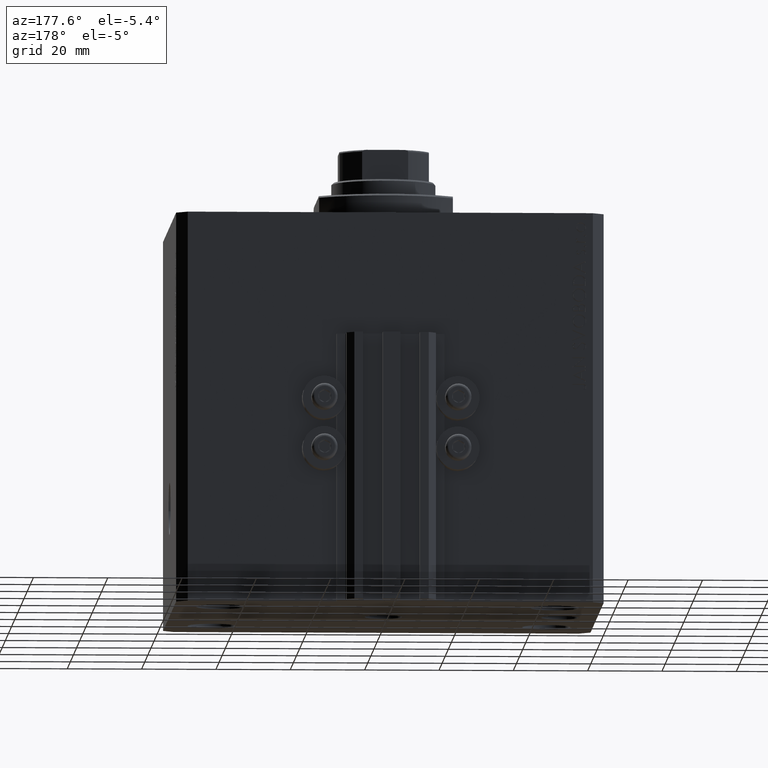
[diagram: clean part render]
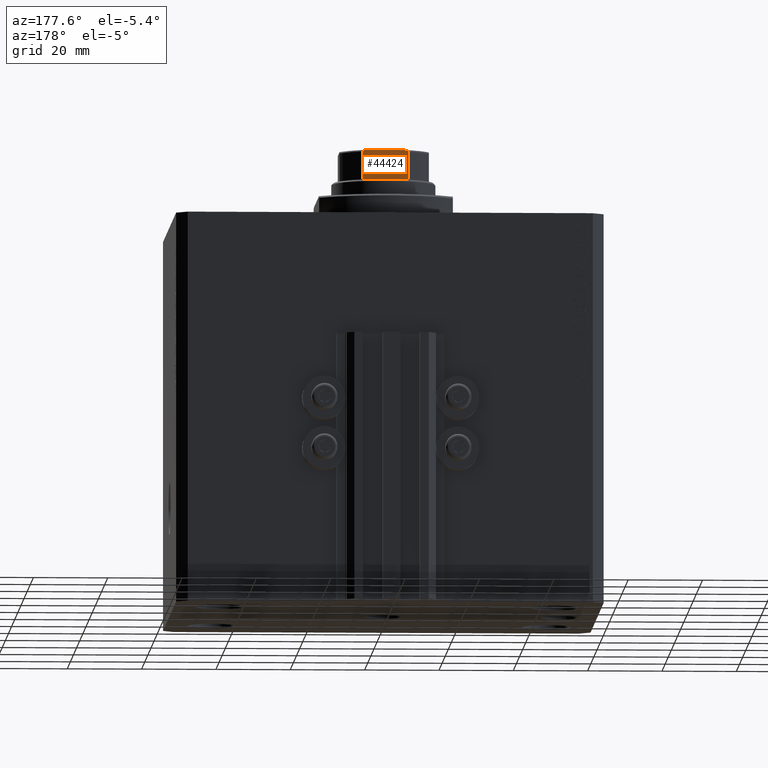
[diagram: same view with one face highlighted and labeled with its STEP entity id]
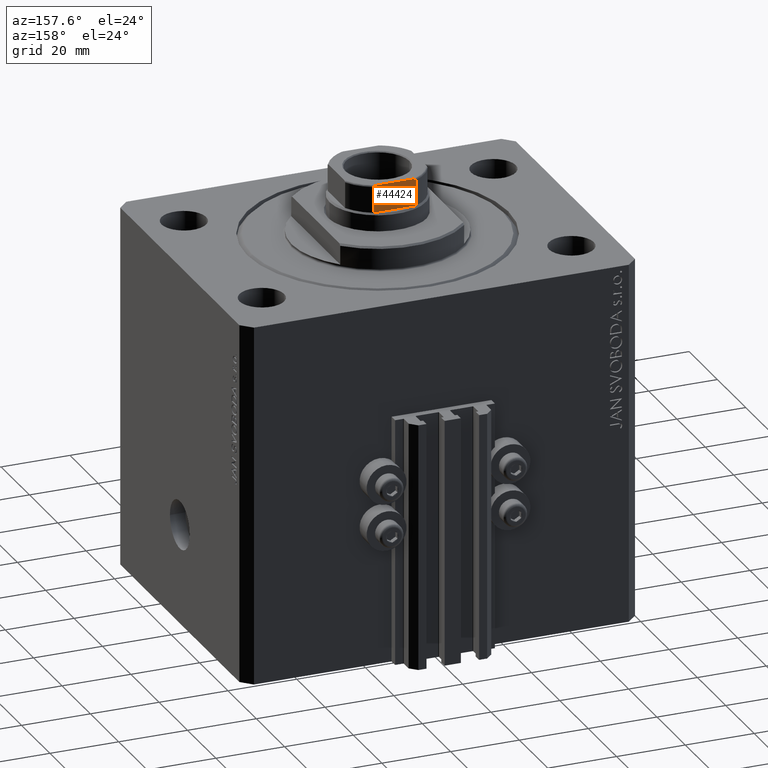
[diagram: same view with one face highlighted and labeled with its STEP entity id]
A machine part, auxiliary view. The second image highlights one B-rep face of the part: STEP entity #44424.
A second angle (auxiliary view) of the same face is appended — the face is thin or edge-on in the first view.
In plain terms, the highlighted planar face has unit normal (0, -1, 0).
Its self-contained STEP definition (entity closure, byte-faithful):
#19 = EDGE_CURVE ( 'NONE', #24273, #27481, #1699, .T. ) ;
#79 = VERTEX_POINT ( 'NONE', #6928 ) ;
#869 = CARTESIAN_POINT ( 'NONE',  ( -6.184658438426491323, 12.00000000000000000, 106.6589344020393924 ) ) ;
#1016 = DIRECTION ( 'NONE',  ( -0.000000000000000000, -0.000000000000000000, 1.000000000000000000 ) ) ;
#1189 = ORIENTED_EDGE ( 'NONE', *, *, #42167, .T. ) ;
#1340 = CARTESIAN_POINT ( 'NONE',  ( -5.000000000000001776, 11.99999999999999822, 107.0999999999999943 ) ) ;
#1699 = B_SPLINE_CURVE_WITH_KNOTS ( 'NONE', 3,
 ( #18988, #22108, #37424, #41042, #29540, #22346, #18759, #33368, #28499, #39281 ),
 .UNSPECIFIED., .F., .F.,
 ( 4, 2, 2, 2, 4 ),
 ( 1.734723475976807094E-18, 0.0006877128613558521411, 0.001031569292033771706, 0.001203497507372732573, 0.001375425722711693440 ),
 .UNSPECIFIED. ) ;
#2186 = LINE ( 'NONE', #45765, #8764 ) ;
#2740 = DIRECTION ( 'NONE',  ( -0.000000000000000000, -0.000000000000000000, 1.000000000000000000 ) ) ;
#3154 = AXIS2_PLACEMENT_3D ( 'NONE', #30145, #15529, #22000 ) ;
#3994 = VERTEX_POINT ( 'NONE', #21577 ) ;
#5400 = CARTESIAN_POINT ( 'NONE',  ( -6.046414714222231979, 11.99999999999999822, 106.8457872300293019 ) ) ;
#6079 = CARTESIAN_POINT ( 'NONE',  ( -6.184658438426490434, 12.00000000000000000, -0.001000000000001000089 ) ) ;
#6706 = ORIENTED_EDGE ( 'NONE', *, *, #31311, .F. ) ;
#6901 = VECTOR ( 'NONE', #2740, 1000.000000000000000 ) ;
#6928 = CARTESIAN_POINT ( 'NONE',  ( -6.184658438426490434, 12.00000000000000000, 106.5999999999999943 ) ) ;
#8412 = CARTESIAN_POINT ( 'NONE',  ( 6.184658438426490434, 11.99999999999999822, -0.001000000000001000089 ) ) ;
#8764 = VECTOR ( 'NONE', #31626, 1000.000000000000000 ) ;
#9824 = LINE ( 'NONE', #38817, #37618 ) ;
#10894 = CARTESIAN_POINT ( 'NONE',  ( 6.184658438426490434, 11.99999999999999822, 106.5999999999999943 ) ) ;
#11955 = VECTOR ( 'NONE', #1016, 1000.000000000000000 ) ;
#12200 = CARTESIAN_POINT ( 'NONE',  ( 5.000000000000002665, 12.00000000000000000, 107.0999999999999943 ) ) ;
#15457 = CARTESIAN_POINT ( 'NONE',  ( -5.230795946637842420, 11.99999999999999645, 107.0999999999999943 ) ) ;
#15529 = DIRECTION ( 'NONE',  ( 7.228014483236695816E-17, -1.000000000000000000, 0.000000000000000000 ) ) ;
#15706 = EDGE_CURVE ( 'NONE', #46531, #20966, #9824, .T. ) ;
#16078 = LINE ( 'NONE', #8412, #11955 ) ;
#18759 = CARTESIAN_POINT ( 'NONE',  ( 6.091027642353962435, 12.00000000000000355, 106.8080088155617347 ) ) ;
#18988 = CARTESIAN_POINT ( 'NONE',  ( 5.000000000000002665, 12.00000000000000000, 107.0999999999999943 ) ) ;
#19761 = CARTESIAN_POINT ( 'NONE',  ( -6.184658438426490434, 12.00000000000000000, 106.5999999999999943 ) ) ;
#20316 = ORIENTED_EDGE ( 'NONE', *, *, #15706, .T. ) ;
#20966 = VERTEX_POINT ( 'NONE', #29313 ) ;
#21577 = CARTESIAN_POINT ( 'NONE',  ( -5.000000000000001776, 11.99999999999999822, 107.0999999999999943 ) ) ;
#21590 = EDGE_CURVE ( 'NONE', #24273, #3994, #2186, .T. ) ;
#21622 = LINE ( 'NONE', #6079, #6901 ) ;
#22000 = DIRECTION ( 'NONE',  ( 1.000000000000000000, 7.228014483236695816E-17, 0.000000000000000000 ) ) ;
#22108 = CARTESIAN_POINT ( 'NONE',  ( 5.230809753656818550, 11.99999999999999289, 107.0999999999999801 ) ) ;
#22346 = CARTESIAN_POINT ( 'NONE',  ( 6.045866546018598520, 12.00000000000000178, 106.8461068616299485 ) ) ;
#23576 = CARTESIAN_POINT ( 'NONE',  ( -6.091003570118825650, 11.99999999999999822, 106.8080862465981227 ) ) ;
#24273 = VERTEX_POINT ( 'NONE', #12200 ) ;
#24420 = DIRECTION ( 'NONE',  ( -1.000000000000000000, -7.228014483236695816E-17, -0.000000000000000000 ) ) ;
#26469 = CARTESIAN_POINT ( 'NONE',  ( -5.458892612163326774, 11.99999999999999822, 107.0796099716497736 ) ) ;
#27481 = VERTEX_POINT ( 'NONE', #10894 ) ;
#27602 = EDGE_LOOP ( 'NONE', ( #45544, #41399, #6706, #20316, #1189, #46771 ) ) ;
#28499 = CARTESIAN_POINT ( 'NONE',  ( 6.184658438426495763, 12.00000000000000355, 106.6589821493407584 ) ) ;
#29313 = CARTESIAN_POINT ( 'NONE',  ( -6.184658438426488658, 12.00000000000000000, 99.10000000000006537 ) ) ;
#29540 = CARTESIAN_POINT ( 'NONE',  ( 5.903192932991098374, 12.00000000000000000, 106.9415152347680333 ) ) ;
#30145 = CARTESIAN_POINT ( 'NONE',  ( -11.99999999999999822, 11.99999999999999822, 107.0999999999999943 ) ) ;
#30616 = B_SPLINE_CURVE_WITH_KNOTS ( 'NONE', 3,
 ( #19761, #869, #37726, #23576, #5400, #41090, #34139, #26469, #15457, #1340 ),
 .UNSPECIFIED., .F., .F.,
 ( 4, 2, 2, 2, 4 ),
 ( 0.000000000000000000, 0.0001740189231935435705, 0.0003480378463870871411, 0.0006960756927741721138, 0.001392151385548330567 ),
 .UNSPECIFIED. ) ;
#31311 = EDGE_CURVE ( 'NONE', #46531, #27481, #16078, .T. ) ;
#31626 = DIRECTION ( 'NONE',  ( -1.000000000000000000, -7.228014483236695816E-17, -0.000000000000000000 ) ) ;
#33290 = CARTESIAN_POINT ( 'NONE',  ( 6.184658438426492211, 12.00000000000000178, 99.10000000000006537 ) ) ;
#33368 = CARTESIAN_POINT ( 'NONE',  ( 6.160856115322540738, 12.00000000000000355, 106.7149782197479055 ) ) ;
#34139 = CARTESIAN_POINT ( 'NONE',  ( -5.792513940493508429, 11.99999999999999822, 106.9846382036009373 ) ) ;
#35748 = FACE_OUTER_BOUND ( 'NONE', #27602, .T. ) ;
#37424 = CARTESIAN_POINT ( 'NONE',  ( 5.459934723612541951, 12.00000000000000000, 107.0794964115812036 ) ) ;
#37618 = VECTOR ( 'NONE', #24420, 1000.000000000000000 ) ;
#37726 = CARTESIAN_POINT ( 'NONE',  ( -6.161088279078732910, 12.00000000000000000, 106.7146234191510104 ) ) ;
#38817 = CARTESIAN_POINT ( 'NONE',  ( -11.99999999999999822, 11.99999999999999822, 99.09999999999999432 ) ) ;
#39281 = CARTESIAN_POINT ( 'NONE',  ( 6.184658438426490434, 11.99999999999999822, 106.5999999999999943 ) ) ;
#39615 = EDGE_CURVE ( 'NONE', #79, #3994, #30616, .T. ) ;
#41042 = CARTESIAN_POINT ( 'NONE',  ( 5.793822051191360956, 11.99999999999999822, 106.9841735219943359 ) ) ;
#41090 = CARTESIAN_POINT ( 'NONE',  ( -5.900889097622411761, 12.00000000000000178, 106.9429613869932894 ) ) ;
#41399 = ORIENTED_EDGE ( 'NONE', *, *, #19, .T. ) ;
#42167 = EDGE_CURVE ( 'NONE', #20966, #79, #21622, .T. ) ;
#44424 = ADVANCED_FACE ( 'NONE', ( #35748 ), #46759, .F. ) ;
#45544 = ORIENTED_EDGE ( 'NONE', *, *, #21590, .F. ) ;
#45765 = CARTESIAN_POINT ( 'NONE',  ( -11.99999999999999822, 11.99999999999999822, 107.0999999999999943 ) ) ;
#46531 = VERTEX_POINT ( 'NONE', #33290 ) ;
#46759 = PLANE ( 'NONE',  #3154 ) ;
#46771 = ORIENTED_EDGE ( 'NONE', *, *, #39615, .T. ) ;